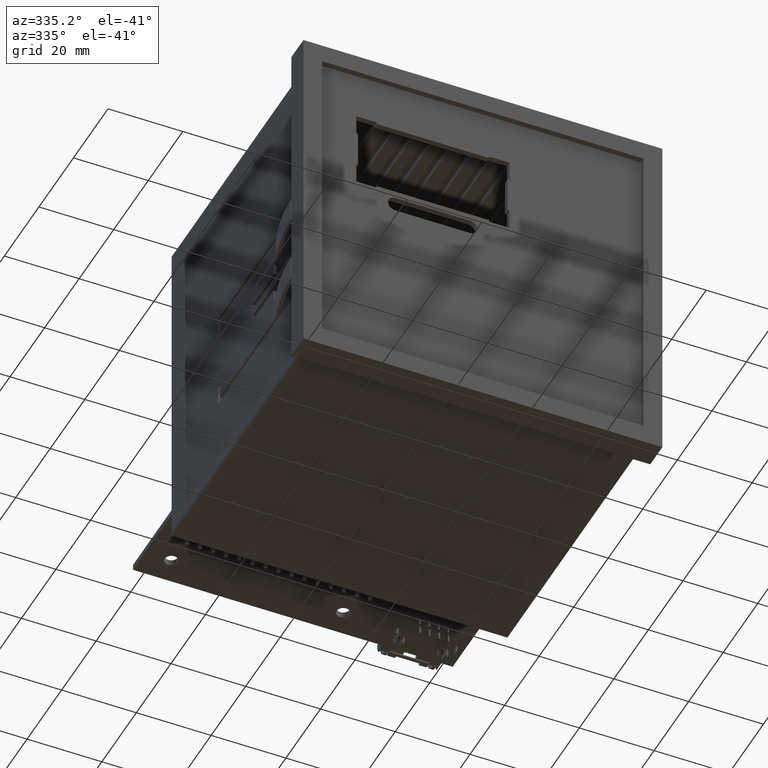
[diagram: clean part render]
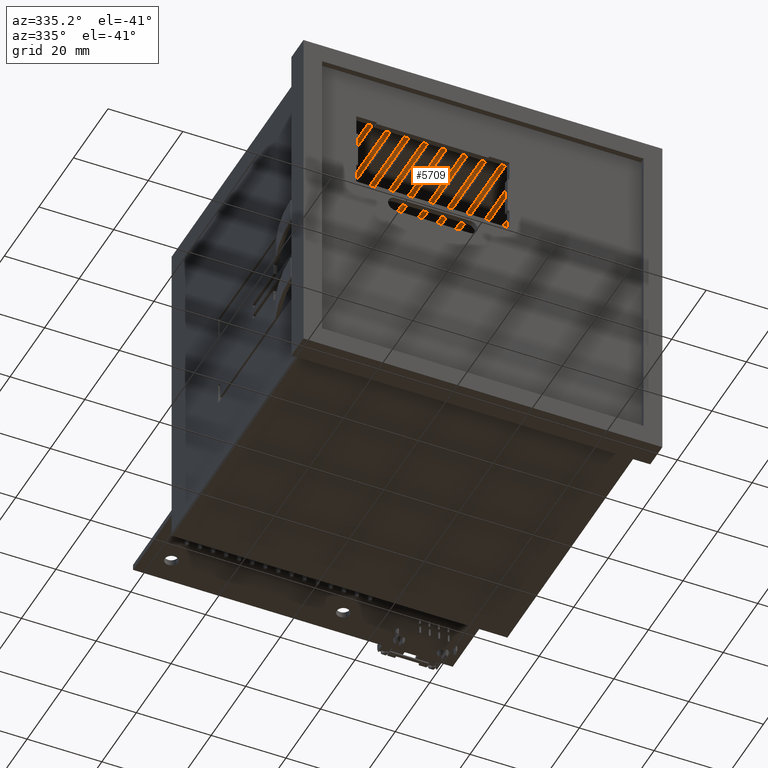
[diagram: same view with one face highlighted and labeled with its STEP entity id]
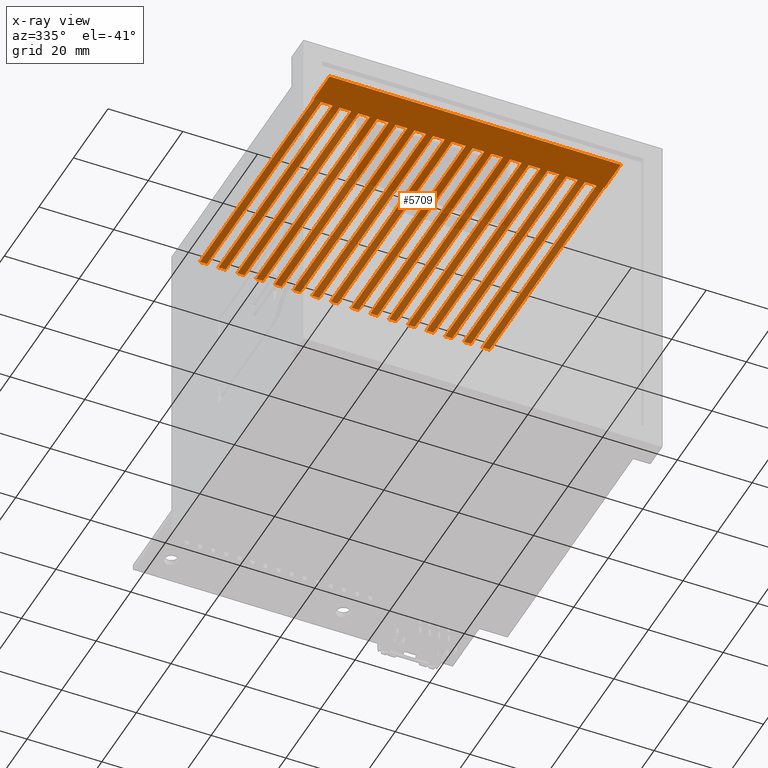
[diagram: x-ray of the same camera — body ghosted, the highlighted face saturated]
A machine part, auxiliary view. The second image highlights one B-rep face of the part: STEP entity #5709.
The next image is the same camera in x-ray: the body ghosted, the highlighted face saturated — about 59% of this face is hidden behind the body in this view.
In plain terms, the highlighted planar face has unit normal (0, 0, 1).
Its self-contained STEP definition (entity closure, byte-faithful):
#809=CARTESIAN_POINT('',(-13.957093014422588,-42.939066365486582,68.500000000000000));
#810=VERTEX_POINT('',#809);
#817=CARTESIAN_POINT('',(-13.957093014422597,-42.747252102161156,68.499999999999986));
#818=VERTEX_POINT('',#817);
#819=CARTESIAN_POINT('',(-13.957093014422588,-42.939066365486582,68.500000000000000));
#820=DIRECTION('',(0.0,1.0,0.0));
#821=VECTOR('',#820,0.191814263325426);
#822=LINE('',#819,#821);
#823=EDGE_CURVE('',#810,#818,#822,.T.);
#920=CARTESIAN_POINT('',(-13.957093014422586,-47.939066365486582,68.500000000000000));
#921=VERTEX_POINT('',#920);
#930=CARTESIAN_POINT('',(-13.957093014422588,-44.839066365486573,68.500000000000000));
#931=VERTEX_POINT('',#930);
#932=CARTESIAN_POINT('',(-13.957093014422586,-47.939066365486582,68.500000000000000));
#933=DIRECTION('',(0.0,1.0,0.0));
#934=VECTOR('',#933,3.100000000000009);
#935=LINE('',#932,#934);
#936=EDGE_CURVE('',#921,#931,#935,.T.);
#960=CARTESIAN_POINT('',(-13.957093014422586,-52.939066365486582,68.500000000000000));
#961=VERTEX_POINT('',#960);
#970=CARTESIAN_POINT('',(-13.957093014422586,-49.839066365486573,68.500000000000000));
#971=VERTEX_POINT('',#970);
#972=CARTESIAN_POINT('',(-13.957093014422586,-52.939066365486582,68.500000000000000));
#973=DIRECTION('',(0.0,1.0,0.0));
#974=VECTOR('',#973,3.100000000000009);
#975=LINE('',#972,#974);
#976=EDGE_CURVE('',#961,#971,#975,.T.);
#1040=CARTESIAN_POINT('',(-13.957093014422586,-57.939066365486582,68.500000000000000));
#1041=VERTEX_POINT('',#1040);
#1050=CARTESIAN_POINT('',(-13.957093014422586,-54.839066365486573,68.500000000000000));
#1051=VERTEX_POINT('',#1050);
#1052=CARTESIAN_POINT('',(-13.957093014422586,-57.939066365486582,68.500000000000000));
#1053=DIRECTION('',(0.0,1.0,0.0));
#1054=VECTOR('',#1053,3.100000000000009);
#1055=LINE('',#1052,#1054);
#1056=EDGE_CURVE('',#1041,#1051,#1055,.T.);
#1120=CARTESIAN_POINT('',(-13.957093014422584,-62.939066365486582,68.500000000000000));
#1121=VERTEX_POINT('',#1120);
#1130=CARTESIAN_POINT('',(-13.957093014422586,-59.839066365486573,68.500000000000000));
#1131=VERTEX_POINT('',#1130);
#1132=CARTESIAN_POINT('',(-13.957093014422584,-62.939066365486582,68.500000000000000));
#1133=DIRECTION('',(0.0,1.0,0.0));
#1134=VECTOR('',#1133,3.100000000000009);
#1135=LINE('',#1132,#1134);
#1136=EDGE_CURVE('',#1121,#1131,#1135,.T.);
#1200=CARTESIAN_POINT('',(-13.957093014422584,-67.939066365486582,68.500000000000000));
#1201=VERTEX_POINT('',#1200);
#1210=CARTESIAN_POINT('',(-13.957093014422584,-64.839066365486573,68.500000000000000));
#1211=VERTEX_POINT('',#1210);
#1212=CARTESIAN_POINT('',(-13.957093014422584,-67.939066365486582,68.500000000000000));
#1213=DIRECTION('',(0.0,1.0,0.0));
#1214=VECTOR('',#1213,3.100000000000009);
#1215=LINE('',#1212,#1214);
#1216=EDGE_CURVE('',#1201,#1211,#1215,.T.);
#1280=CARTESIAN_POINT('',(-13.957093014422584,-72.939066365486582,68.500000000000000));
#1281=VERTEX_POINT('',#1280);
#1290=CARTESIAN_POINT('',(-13.957093014422584,-69.839066365486573,68.500000000000000));
#1291=VERTEX_POINT('',#1290);
#1292=CARTESIAN_POINT('',(-13.957093014422584,-72.939066365486582,68.500000000000000));
#1293=DIRECTION('',(0.0,1.0,0.0));
#1294=VECTOR('',#1293,3.100000000000009);
#1295=LINE('',#1292,#1294);
#1296=EDGE_CURVE('',#1281,#1291,#1295,.T.);
#1360=CARTESIAN_POINT('',(-13.957093014422583,-77.939066365486582,68.500000000000000));
#1361=VERTEX_POINT('',#1360);
#1370=CARTESIAN_POINT('',(-13.957093014422584,-74.839066365486573,68.500000000000000));
#1371=VERTEX_POINT('',#1370);
#1372=CARTESIAN_POINT('',(-13.957093014422583,-77.939066365486582,68.500000000000000));
#1373=DIRECTION('',(0.0,1.0,0.0));
#1374=VECTOR('',#1373,3.100000000000009);
#1375=LINE('',#1372,#1374);
#1376=EDGE_CURVE('',#1361,#1371,#1375,.T.);
#1440=CARTESIAN_POINT('',(-13.957093014422583,-83.539066365486590,68.500000000000000));
#1441=VERTEX_POINT('',#1440);
#1450=CARTESIAN_POINT('',(-13.957093014422583,-79.839066365486573,68.500000000000000));
#1451=VERTEX_POINT('',#1450);
#1452=CARTESIAN_POINT('',(-13.957093014422583,-83.539066365486590,68.500000000000000));
#1453=DIRECTION('',(0.0,1.0,0.0));
#1454=VECTOR('',#1453,3.700000000000017);
#1455=LINE('',#1452,#1454);
#1456=EDGE_CURVE('',#1441,#1451,#1455,.T.);
#1520=CARTESIAN_POINT('',(-13.957093014422583,-88.539066365486590,68.500000000000000));
#1521=VERTEX_POINT('',#1520);
#1530=CARTESIAN_POINT('',(-13.957093014422583,-85.439066365486596,68.500000000000000));
#1531=VERTEX_POINT('',#1530);
#1532=CARTESIAN_POINT('',(-13.957093014422583,-88.539066365486590,68.500000000000000));
#1533=DIRECTION('',(0.0,1.0,0.0));
#1534=VECTOR('',#1533,3.099999999999994);
#1535=LINE('',#1532,#1534);
#1536=EDGE_CURVE('',#1521,#1531,#1535,.T.);
#1600=CARTESIAN_POINT('',(-13.957093014422581,-93.539066365486590,68.500000000000000));
#1601=VERTEX_POINT('',#1600);
#1610=CARTESIAN_POINT('',(-13.957093014422581,-90.439066365486596,68.500000000000000));
#1611=VERTEX_POINT('',#1610);
#1612=CARTESIAN_POINT('',(-13.957093014422581,-93.539066365486590,68.500000000000000));
#1613=DIRECTION('',(0.0,1.0,0.0));
#1614=VECTOR('',#1613,3.099999999999994);
#1615=LINE('',#1612,#1614);
#1616=EDGE_CURVE('',#1601,#1611,#1615,.T.);
#1680=CARTESIAN_POINT('',(-13.957093014422581,-98.539066365486590,68.500000000000000));
#1681=VERTEX_POINT('',#1680);
#1690=CARTESIAN_POINT('',(-13.957093014422581,-95.439066365486596,68.500000000000000));
#1691=VERTEX_POINT('',#1690);
#1692=CARTESIAN_POINT('',(-13.957093014422581,-98.539066365486590,68.500000000000000));
#1693=DIRECTION('',(0.0,1.0,0.0));
#1694=VECTOR('',#1693,3.099999999999994);
#1695=LINE('',#1692,#1694);
#1696=EDGE_CURVE('',#1681,#1691,#1695,.T.);
#1760=CARTESIAN_POINT('',(-13.957093014422581,-103.539066365486590,68.500000000000000));
#1761=VERTEX_POINT('',#1760);
#1770=CARTESIAN_POINT('',(-13.957093014422581,-100.439066365486600,68.500000000000000));
#1771=VERTEX_POINT('',#1770);
#1772=CARTESIAN_POINT('',(-13.957093014422581,-103.539066365486590,68.500000000000000));
#1773=DIRECTION('',(0.0,1.0,0.0));
#1774=VECTOR('',#1773,3.099999999999994);
#1775=LINE('',#1772,#1774);
#1776=EDGE_CURVE('',#1761,#1771,#1775,.T.);
#1840=CARTESIAN_POINT('',(-13.957093014422579,-108.539066365486590,68.500000000000000));
#1841=VERTEX_POINT('',#1840);
#1850=CARTESIAN_POINT('',(-13.957093014422579,-105.439066365486600,68.500000000000000));
#1851=VERTEX_POINT('',#1850);
#1852=CARTESIAN_POINT('',(-13.957093014422579,-108.539066365486590,68.500000000000000));
#1853=DIRECTION('',(0.0,1.0,0.0));
#1854=VECTOR('',#1853,3.099999999999994);
#1855=LINE('',#1852,#1854);
#1856=EDGE_CURVE('',#1841,#1851,#1855,.T.);
#1953=CARTESIAN_POINT('',(-13.957093014422579,-118.539066365486590,68.500000000000000));
#1954=VERTEX_POINT('',#1953);
#1963=CARTESIAN_POINT('',(-13.957093014422579,-115.439066365486600,68.500000000000000));
#1964=VERTEX_POINT('',#1963);
#1965=CARTESIAN_POINT('',(-13.957093014422579,-118.539066365486590,68.500000000000000));
#1966=DIRECTION('',(0.0,1.0,0.0));
#1967=VECTOR('',#1966,3.099999999999994);
#1968=LINE('',#1965,#1967);
#1969=EDGE_CURVE('',#1954,#1964,#1968,.T.);
#1993=CARTESIAN_POINT('',(-13.957093014422579,-113.539066365486590,68.500000000000000));
#1994=VERTEX_POINT('',#1993);
#2003=CARTESIAN_POINT('',(-13.957093014422579,-110.439066365486600,68.500000000000000));
#2004=VERTEX_POINT('',#2003);
#2005=CARTESIAN_POINT('',(-13.957093014422579,-113.539066365486590,68.500000000000000));
#2006=DIRECTION('',(0.0,1.0,0.0));
#2007=VECTOR('',#2006,3.099999999999994);
#2008=LINE('',#2005,#2007);
#2009=EDGE_CURVE('',#1994,#2004,#2008,.T.);
#2097=CARTESIAN_POINT('',(-13.957093014422577,-120.439066365486600,68.500000000000000));
#2098=VERTEX_POINT('',#2097);
#2105=CARTESIAN_POINT('',(-13.957093014422576,-120.630880628811950,68.499999999999986));
#2106=VERTEX_POINT('',#2105);
#2114=CARTESIAN_POINT('',(-13.957093014422576,-120.630880628811950,68.499999999999986));
#2115=DIRECTION('',(0.0,1.0,0.0));
#2116=VECTOR('',#2115,0.191814263325355);
#2117=LINE('',#2114,#2116);
#2118=EDGE_CURVE('',#2106,#2098,#2117,.T.);
#5256=CARTESIAN_POINT('',(-13.957093014422576,-120.630880628811950,78.0));
#5257=VERTEX_POINT('',#5256);
#5265=CARTESIAN_POINT('',(-13.957093014422576,-120.630880628811950,78.0));
#5266=DIRECTION('',(0.0,0.0,-1.0));
#5267=VECTOR('',#5266,9.500000000000014);
#5268=LINE('',#5265,#5267);
#5269=EDGE_CURVE('',#5257,#2106,#5268,.T.);
#5307=CARTESIAN_POINT('',(-13.957093014422576,-120.439066365486600,2.500000000000000));
#5308=VERTEX_POINT('',#5307);
#5309=CARTESIAN_POINT('',(-13.957093014422576,-120.439066365486600,2.500000000000000));
#5310=DIRECTION('',(0.0,0.0,1.0));
#5311=VECTOR('',#5310,66.0);
#5312=LINE('',#5309,#5311);
#5313=EDGE_CURVE('',#5308,#2098,#5312,.T.);
#5325=CARTESIAN_POINT('',(-13.957093014422576,-118.539066365486590,-0.500000000000000));
#5326=DIRECTION('',(1.0,0.0,0.0));
#5327=DIRECTION('',(0.0,0.0,-1.0));
#5328=AXIS2_PLACEMENT_3D('',#5325,#5326,#5327);
#5329=PLANE('',#5328);
#5330=CARTESIAN_POINT('',(-13.957093014422576,-118.539066365486590,2.500000000000000));
#5331=VERTEX_POINT('',#5330);
#5332=CARTESIAN_POINT('',(-13.957093014422576,-118.539066365486590,2.500000000000000));
#5333=DIRECTION('',(0.0,0.0,1.0));
#5334=VECTOR('',#5333,66.0);
#5335=LINE('',#5332,#5334);
#5336=EDGE_CURVE('',#5331,#1954,#5335,.T.);
#5337=ORIENTED_EDGE('',*,*,#5336,.F.);
#5338=CARTESIAN_POINT('',(-13.957093014422576,-118.539066365486590,2.500000000000000));
#5339=DIRECTION('',(0.0,-1.0,0.0));
#5340=VECTOR('',#5339,1.900000000000006);
#5341=LINE('',#5338,#5340);
#5342=EDGE_CURVE('',#5331,#5308,#5341,.T.);
#5343=ORIENTED_EDGE('',*,*,#5342,.T.);
#5344=ORIENTED_EDGE('',*,*,#5313,.T.);
#5345=ORIENTED_EDGE('',*,*,#2118,.F.);
#5346=ORIENTED_EDGE('',*,*,#5269,.F.);
#5347=CARTESIAN_POINT('',(-13.957093014422597,-42.747252102161156,78.0));
#5348=VERTEX_POINT('',#5347);
#5349=CARTESIAN_POINT('',(-13.957093014422597,-42.747252102161156,78.0));
#5350=DIRECTION('',(0.0,-1.0,0.0));
#5351=VECTOR('',#5350,77.883628526650796);
#5352=LINE('',#5349,#5351);
#5353=EDGE_CURVE('',#5348,#5257,#5352,.T.);
#5354=ORIENTED_EDGE('',*,*,#5353,.F.);
#5355=CARTESIAN_POINT('',(-13.957093014422597,-42.747252102161156,78.0));
#5356=DIRECTION('',(0.0,0.0,-1.0));
#5357=VECTOR('',#5356,9.500000000000014);
#5358=LINE('',#5355,#5357);
#5359=EDGE_CURVE('',#5348,#818,#5358,.T.);
#5360=ORIENTED_EDGE('',*,*,#5359,.T.);
#5361=ORIENTED_EDGE('',*,*,#823,.F.);
#5362=CARTESIAN_POINT('',(-13.957093014422604,-42.939066365486582,2.500000000000000));
#5363=VERTEX_POINT('',#5362);
#5364=CARTESIAN_POINT('',(-13.957093014422604,-42.939066365486582,2.500000000000000));
#5365=DIRECTION('',(0.0,0.0,1.0));
#5366=VECTOR('',#5365,66.0);
#5367=LINE('',#5364,#5366);
#5368=EDGE_CURVE('',#5363,#810,#5367,.T.);
#5369=ORIENTED_EDGE('',*,*,#5368,.F.);
#5370=CARTESIAN_POINT('',(-13.957093014422604,-44.839066365486573,2.500000000000000));
#5371=VERTEX_POINT('',#5370);
#5372=CARTESIAN_POINT('',(-13.957093014422604,-44.839066365486573,2.500000000000000));
#5373=DIRECTION('',(0.0,1.0,0.0));
#5374=VECTOR('',#5373,1.899999999999992);
#5375=LINE('',#5372,#5374);
#5376=EDGE_CURVE('',#5371,#5363,#5375,.T.);
#5377=ORIENTED_EDGE('',*,*,#5376,.F.);
#5378=CARTESIAN_POINT('',(-13.957093014422604,-44.839066365486573,2.500000000000000));
#5379=DIRECTION('',(0.0,0.0,1.0));
#5380=VECTOR('',#5379,66.0);
#5381=LINE('',#5378,#5380);
#5382=EDGE_CURVE('',#5371,#931,#5381,.T.);
#5383=ORIENTED_EDGE('',*,*,#5382,.T.);
#5384=ORIENTED_EDGE('',*,*,#936,.F.);
#5385=CARTESIAN_POINT('',(-13.957093014422604,-47.939066365486582,2.500000000000000));
#5386=VERTEX_POINT('',#5385);
#5387=CARTESIAN_POINT('',(-13.957093014422604,-47.939066365486582,2.500000000000000));
#5388=DIRECTION('',(0.0,0.0,1.0));
#5389=VECTOR('',#5388,66.0);
#5390=LINE('',#5387,#5389);
#5391=EDGE_CURVE('',#5386,#921,#5390,.T.);
#5392=ORIENTED_EDGE('',*,*,#5391,.F.);
#5393=CARTESIAN_POINT('',(-13.957093014422604,-49.839066365486573,2.500000000000000));
#5394=VERTEX_POINT('',#5393);
#5395=CARTESIAN_POINT('',(-13.957093014422604,-49.839066365486573,2.500000000000000));
#5396=DIRECTION('',(0.0,1.0,0.0));
#5397=VECTOR('',#5396,1.899999999999992);
#5398=LINE('',#5395,#5397);
#5399=EDGE_CURVE('',#5394,#5386,#5398,.T.);
#5400=ORIENTED_EDGE('',*,*,#5399,.F.);
#5401=CARTESIAN_POINT('',(-13.957093014422604,-49.839066365486573,2.500000000000000));
#5402=DIRECTION('',(0.0,0.0,1.0));
#5403=VECTOR('',#5402,66.0);
#5404=LINE('',#5401,#5403);
#5405=EDGE_CURVE('',#5394,#971,#5404,.T.);
#5406=ORIENTED_EDGE('',*,*,#5405,.T.);
#5407=ORIENTED_EDGE('',*,*,#976,.F.);
#5408=CARTESIAN_POINT('',(-13.957093014422602,-52.939066365486582,2.500000000000000));
#5409=VERTEX_POINT('',#5408);
#5410=CARTESIAN_POINT('',(-13.957093014422602,-52.939066365486582,2.500000000000000));
#5411=DIRECTION('',(0.0,0.0,1.0));
#5412=VECTOR('',#5411,66.0);
#5413=LINE('',#5410,#5412);
#5414=EDGE_CURVE('',#5409,#961,#5413,.T.);
#5415=ORIENTED_EDGE('',*,*,#5414,.F.);
#5416=CARTESIAN_POINT('',(-13.957093014422602,-54.839066365486573,2.500000000000000));
#5417=VERTEX_POINT('',#5416);
#5418=CARTESIAN_POINT('',(-13.957093014422602,-54.839066365486573,2.500000000000000));
#5419=DIRECTION('',(0.0,1.0,0.0));
#5420=VECTOR('',#5419,1.899999999999992);
#5421=LINE('',#5418,#5420);
#5422=EDGE_CURVE('',#5417,#5409,#5421,.T.);
#5423=ORIENTED_EDGE('',*,*,#5422,.F.);
#5424=CARTESIAN_POINT('',(-13.957093014422602,-54.839066365486573,2.500000000000000));
#5425=DIRECTION('',(0.0,0.0,1.0));
#5426=VECTOR('',#5425,66.0);
#5427=LINE('',#5424,#5426);
#5428=EDGE_CURVE('',#5417,#1051,#5427,.T.);
#5429=ORIENTED_EDGE('',*,*,#5428,.T.);
#5430=ORIENTED_EDGE('',*,*,#1056,.F.);
#5431=CARTESIAN_POINT('',(-13.957093014422600,-57.939066365486582,2.500000000000000));
#5432=VERTEX_POINT('',#5431);
#5433=CARTESIAN_POINT('',(-13.957093014422600,-57.939066365486582,2.500000000000000));
#5434=DIRECTION('',(0.0,0.0,1.0));
#5435=VECTOR('',#5434,66.0);
#5436=LINE('',#5433,#5435);
#5437=EDGE_CURVE('',#5432,#1041,#5436,.T.);
#5438=ORIENTED_EDGE('',*,*,#5437,.F.);
#5439=CARTESIAN_POINT('',(-13.957093014422600,-59.839066365486573,2.500000000000000));
#5440=VERTEX_POINT('',#5439);
#5441=CARTESIAN_POINT('',(-13.957093014422600,-59.839066365486573,2.500000000000000));
#5442=DIRECTION('',(0.0,1.0,0.0));
#5443=VECTOR('',#5442,1.899999999999992);
#5444=LINE('',#5441,#5443);
#5445=EDGE_CURVE('',#5440,#5432,#5444,.T.);
#5446=ORIENTED_EDGE('',*,*,#5445,.F.);
#5447=CARTESIAN_POINT('',(-13.957093014422600,-59.839066365486573,2.500000000000000));
#5448=DIRECTION('',(0.0,0.0,1.0));
#5449=VECTOR('',#5448,66.0);
#5450=LINE('',#5447,#5449);
#5451=EDGE_CURVE('',#5440,#1131,#5450,.T.);
#5452=ORIENTED_EDGE('',*,*,#5451,.T.);
#5453=ORIENTED_EDGE('',*,*,#1136,.F.);
#5454=CARTESIAN_POINT('',(-13.957093014422600,-62.939066365486582,2.500000000000000));
#5455=VERTEX_POINT('',#5454);
#5456=CARTESIAN_POINT('',(-13.957093014422600,-62.939066365486582,2.500000000000000));
#5457=DIRECTION('',(0.0,0.0,1.0));
#5458=VECTOR('',#5457,66.0);
#5459=LINE('',#5456,#5458);
#5460=EDGE_CURVE('',#5455,#1121,#5459,.T.);
#5461=ORIENTED_EDGE('',*,*,#5460,.F.);
#5462=CARTESIAN_POINT('',(-13.957093014422600,-64.839066365486573,2.500000000000000));
#5463=VERTEX_POINT('',#5462);
#5464=CARTESIAN_POINT('',(-13.957093014422600,-64.839066365486573,2.500000000000000));
#5465=DIRECTION('',(0.0,1.0,0.0));
#5466=VECTOR('',#5465,1.899999999999992);
#5467=LINE('',#5464,#5466);
#5468=EDGE_CURVE('',#5463,#5455,#5467,.T.);
#5469=ORIENTED_EDGE('',*,*,#5468,.F.);
#5470=CARTESIAN_POINT('',(-13.957093014422600,-64.839066365486573,2.500000000000000));
#5471=DIRECTION('',(0.0,0.0,1.0));
#5472=VECTOR('',#5471,66.0);
#5473=LINE('',#5470,#5472);
#5474=EDGE_CURVE('',#5463,#1211,#5473,.T.);
#5475=ORIENTED_EDGE('',*,*,#5474,.T.);
#5476=ORIENTED_EDGE('',*,*,#1216,.F.);
#5477=CARTESIAN_POINT('',(-13.957093014422599,-67.939066365486582,2.500000000000000));
#5478=VERTEX_POINT('',#5477);
#5479=CARTESIAN_POINT('',(-13.957093014422599,-67.939066365486582,2.500000000000000));
#5480=DIRECTION('',(0.0,0.0,1.0));
#5481=VECTOR('',#5480,66.0);
#5482=LINE('',#5479,#5481);
#5483=EDGE_CURVE('',#5478,#1201,#5482,.T.);
#5484=ORIENTED_EDGE('',*,*,#5483,.F.);
#5485=CARTESIAN_POINT('',(-13.957093014422599,-69.839066365486573,2.500000000000000));
#5486=VERTEX_POINT('',#5485);
#5487=CARTESIAN_POINT('',(-13.957093014422599,-69.839066365486573,2.500000000000000));
#5488=DIRECTION('',(0.0,1.0,0.0));
#5489=VECTOR('',#5488,1.899999999999992);
#5490=LINE('',#5487,#5489);
#5491=EDGE_CURVE('',#5486,#5478,#5490,.T.);
#5492=ORIENTED_EDGE('',*,*,#5491,.F.);
#5493=CARTESIAN_POINT('',(-13.957093014422599,-69.839066365486573,2.500000000000000));
#5494=DIRECTION('',(0.0,0.0,1.0));
#5495=VECTOR('',#5494,66.0);
#5496=LINE('',#5493,#5495);
#5497=EDGE_CURVE('',#5486,#1291,#5496,.T.);
#5498=ORIENTED_EDGE('',*,*,#5497,.T.);
#5499=ORIENTED_EDGE('',*,*,#1296,.F.);
#5500=CARTESIAN_POINT('',(-13.957093014422599,-72.939066365486582,2.500000000000000));
#5501=VERTEX_POINT('',#5500);
#5502=CARTESIAN_POINT('',(-13.957093014422599,-72.939066365486582,2.500000000000000));
#5503=DIRECTION('',(0.0,0.0,1.0));
#5504=VECTOR('',#5503,66.0);
#5505=LINE('',#5502,#5504);
#5506=EDGE_CURVE('',#5501,#1281,#5505,.T.);
#5507=ORIENTED_EDGE('',*,*,#5506,.F.);
#5508=CARTESIAN_POINT('',(-13.957093014422599,-74.839066365486573,2.500000000000000));
#5509=VERTEX_POINT('',#5508);
#5510=CARTESIAN_POINT('',(-13.957093014422599,-74.839066365486573,2.500000000000000));
#5511=DIRECTION('',(0.0,1.0,0.0));
#5512=VECTOR('',#5511,1.899999999999992);
#5513=LINE('',#5510,#5512);
#5514=EDGE_CURVE('',#5509,#5501,#5513,.T.);
#5515=ORIENTED_EDGE('',*,*,#5514,.F.);
#5516=CARTESIAN_POINT('',(-13.957093014422599,-74.839066365486573,2.500000000000000));
#5517=DIRECTION('',(0.0,0.0,1.0));
#5518=VECTOR('',#5517,66.0);
#5519=LINE('',#5516,#5518);
#5520=EDGE_CURVE('',#5509,#1371,#5519,.T.);
#5521=ORIENTED_EDGE('',*,*,#5520,.T.);
#5522=ORIENTED_EDGE('',*,*,#1376,.F.);
#5523=CARTESIAN_POINT('',(-13.957093014422597,-77.939066365486582,2.500000000000000));
#5524=VERTEX_POINT('',#5523);
#5525=CARTESIAN_POINT('',(-13.957093014422597,-77.939066365486582,2.500000000000000));
#5526=DIRECTION('',(0.0,0.0,1.0));
#5527=VECTOR('',#5526,66.0);
#5528=LINE('',#5525,#5527);
#5529=EDGE_CURVE('',#5524,#1361,#5528,.T.);
#5530=ORIENTED_EDGE('',*,*,#5529,.F.);
#5531=CARTESIAN_POINT('',(-13.957093014422597,-79.839066365486573,2.500000000000000));
#5532=VERTEX_POINT('',#5531);
#5533=CARTESIAN_POINT('',(-13.957093014422597,-79.839066365486573,2.500000000000000));
#5534=DIRECTION('',(0.0,1.0,0.0));
#5535=VECTOR('',#5534,1.899999999999992);
#5536=LINE('',#5533,#5535);
#5537=EDGE_CURVE('',#5532,#5524,#5536,.T.);
#5538=ORIENTED_EDGE('',*,*,#5537,.F.);
#5539=CARTESIAN_POINT('',(-13.957093014422597,-79.839066365486573,2.500000000000000));
#5540=DIRECTION('',(0.0,0.0,1.0));
#5541=VECTOR('',#5540,66.0);
#5542=LINE('',#5539,#5541);
#5543=EDGE_CURVE('',#5532,#1451,#5542,.T.);
#5544=ORIENTED_EDGE('',*,*,#5543,.T.);
#5545=ORIENTED_EDGE('',*,*,#1456,.F.);
#5546=CARTESIAN_POINT('',(-13.957093014422583,-83.539066365486590,2.500000000000000));
#5547=VERTEX_POINT('',#5546);
#5548=CARTESIAN_POINT('',(-13.957093014422583,-83.539066365486590,2.500000000000000));
#5549=DIRECTION('',(0.0,0.0,1.0));
#5550=VECTOR('',#5549,66.0);
#5551=LINE('',#5548,#5550);
#5552=EDGE_CURVE('',#5547,#1441,#5551,.T.);
#5553=ORIENTED_EDGE('',*,*,#5552,.F.);
#5554=CARTESIAN_POINT('',(-13.957093014422583,-85.439066365486596,2.500000000000000));
#5555=VERTEX_POINT('',#5554);
#5556=CARTESIAN_POINT('',(-13.957093014422583,-83.539066365486590,2.500000000000000));
#5557=DIRECTION('',(0.0,-1.0,0.0));
#5558=VECTOR('',#5557,1.900000000000006);
#5559=LINE('',#5556,#5558);
#5560=EDGE_CURVE('',#5547,#5555,#5559,.T.);
#5561=ORIENTED_EDGE('',*,*,#5560,.T.);
#5562=CARTESIAN_POINT('',(-13.957093014422583,-85.439066365486596,2.500000000000000));
#5563=DIRECTION('',(0.0,0.0,1.0));
#5564=VECTOR('',#5563,66.0);
#5565=LINE('',#5562,#5564);
#5566=EDGE_CURVE('',#5555,#1531,#5565,.T.);
#5567=ORIENTED_EDGE('',*,*,#5566,.T.);
#5568=ORIENTED_EDGE('',*,*,#1536,.F.);
#5569=CARTESIAN_POINT('',(-13.957093014422581,-88.539066365486590,2.500000000000000));
#5570=VERTEX_POINT('',#5569);
#5571=CARTESIAN_POINT('',(-13.957093014422581,-88.539066365486590,2.500000000000000));
#5572=DIRECTION('',(0.0,0.0,1.0));
#5573=VECTOR('',#5572,66.0);
#5574=LINE('',#5571,#5573);
#5575=EDGE_CURVE('',#5570,#1521,#5574,.T.);
#5576=ORIENTED_EDGE('',*,*,#5575,.F.);
#5577=CARTESIAN_POINT('',(-13.957093014422581,-90.439066365486596,2.500000000000000));
#5578=VERTEX_POINT('',#5577);
#5579=CARTESIAN_POINT('',(-13.957093014422581,-88.539066365486590,2.500000000000000));
#5580=DIRECTION('',(0.0,-1.0,0.0));
#5581=VECTOR('',#5580,1.900000000000006);
#5582=LINE('',#5579,#5581);
#5583=EDGE_CURVE('',#5570,#5578,#5582,.T.);
#5584=ORIENTED_EDGE('',*,*,#5583,.T.);
#5585=CARTESIAN_POINT('',(-13.957093014422581,-90.439066365486596,2.500000000000000));
#5586=DIRECTION('',(0.0,0.0,1.0));
#5587=VECTOR('',#5586,66.0);
#5588=LINE('',#5585,#5587);
#5589=EDGE_CURVE('',#5578,#1611,#5588,.T.);
#5590=ORIENTED_EDGE('',*,*,#5589,.T.);
#5591=ORIENTED_EDGE('',*,*,#1616,.F.);
#5592=CARTESIAN_POINT('',(-13.957093014422581,-93.539066365486590,2.500000000000000));
#5593=VERTEX_POINT('',#5592);
#5594=CARTESIAN_POINT('',(-13.957093014422581,-93.539066365486590,2.500000000000000));
#5595=DIRECTION('',(0.0,0.0,1.0));
#5596=VECTOR('',#5595,66.0);
#5597=LINE('',#5594,#5596);
#5598=EDGE_CURVE('',#5593,#1601,#5597,.T.);
#5599=ORIENTED_EDGE('',*,*,#5598,.F.);
#5600=CARTESIAN_POINT('',(-13.957093014422581,-95.439066365486596,2.500000000000000));
#5601=VERTEX_POINT('',#5600);
#5602=CARTESIAN_POINT('',(-13.957093014422581,-93.539066365486590,2.500000000000000));
#5603=DIRECTION('',(0.0,-1.0,0.0));
#5604=VECTOR('',#5603,1.900000000000006);
#5605=LINE('',#5602,#5604);
#5606=EDGE_CURVE('',#5593,#5601,#5605,.T.);
#5607=ORIENTED_EDGE('',*,*,#5606,.T.);
#5608=CARTESIAN_POINT('',(-13.957093014422581,-95.439066365486596,2.500000000000000));
#5609=DIRECTION('',(0.0,0.0,1.0));
#5610=VECTOR('',#5609,66.0);
#5611=LINE('',#5608,#5610);
#5612=EDGE_CURVE('',#5601,#1691,#5611,.T.);
#5613=ORIENTED_EDGE('',*,*,#5612,.T.);
#5614=ORIENTED_EDGE('',*,*,#1696,.F.);
#5615=CARTESIAN_POINT('',(-13.957093014422579,-98.539066365486590,2.500000000000000));
#5616=VERTEX_POINT('',#5615);
#5617=CARTESIAN_POINT('',(-13.957093014422579,-98.539066365486590,2.500000000000000));
#5618=DIRECTION('',(0.0,0.0,1.0));
#5619=VECTOR('',#5618,66.0);
#5620=LINE('',#5617,#5619);
#5621=EDGE_CURVE('',#5616,#1681,#5620,.T.);
#5622=ORIENTED_EDGE('',*,*,#5621,.F.);
#5623=CARTESIAN_POINT('',(-13.957093014422579,-100.439066365486600,2.500000000000000));
#5624=VERTEX_POINT('',#5623);
#5625=CARTESIAN_POINT('',(-13.957093014422579,-98.539066365486590,2.500000000000000));
#5626=DIRECTION('',(0.0,-1.0,0.0));
#5627=VECTOR('',#5626,1.900000000000006);
#5628=LINE('',#5625,#5627);
#5629=EDGE_CURVE('',#5616,#5624,#5628,.T.);
#5630=ORIENTED_EDGE('',*,*,#5629,.T.);
#5631=CARTESIAN_POINT('',(-13.957093014422579,-100.439066365486600,2.500000000000000));
#5632=DIRECTION('',(0.0,0.0,1.0));
#5633=VECTOR('',#5632,66.0);
#5634=LINE('',#5631,#5633);
#5635=EDGE_CURVE('',#5624,#1771,#5634,.T.);
#5636=ORIENTED_EDGE('',*,*,#5635,.T.);
#5637=ORIENTED_EDGE('',*,*,#1776,.F.);
#5638=CARTESIAN_POINT('',(-13.957093014422579,-103.539066365486590,2.500000000000000));
#5639=VERTEX_POINT('',#5638);
#5640=CARTESIAN_POINT('',(-13.957093014422579,-103.539066365486590,2.500000000000000));
#5641=DIRECTION('',(0.0,0.0,1.0));
#5642=VECTOR('',#5641,66.0);
#5643=LINE('',#5640,#5642);
#5644=EDGE_CURVE('',#5639,#1761,#5643,.T.);
#5645=ORIENTED_EDGE('',*,*,#5644,.F.);
#5646=CARTESIAN_POINT('',(-13.957093014422579,-105.439066365486600,2.500000000000000));
#5647=VERTEX_POINT('',#5646);
#5648=CARTESIAN_POINT('',(-13.957093014422579,-103.539066365486590,2.500000000000000));
#5649=DIRECTION('',(0.0,-1.0,0.0));
#5650=VECTOR('',#5649,1.900000000000006);
#5651=LINE('',#5648,#5650);
#5652=EDGE_CURVE('',#5639,#5647,#5651,.T.);
#5653=ORIENTED_EDGE('',*,*,#5652,.T.);
#5654=CARTESIAN_POINT('',(-13.957093014422579,-105.439066365486600,2.500000000000000));
#5655=DIRECTION('',(0.0,0.0,1.0));
#5656=VECTOR('',#5655,66.0);
#5657=LINE('',#5654,#5656);
#5658=EDGE_CURVE('',#5647,#1851,#5657,.T.);
#5659=ORIENTED_EDGE('',*,*,#5658,.T.);
#5660=ORIENTED_EDGE('',*,*,#1856,.F.);
#5661=CARTESIAN_POINT('',(-13.957093014422577,-108.539066365486590,2.500000000000000));
#5662=VERTEX_POINT('',#5661);
#5663=CARTESIAN_POINT('',(-13.957093014422577,-108.539066365486590,2.500000000000000));
#5664=DIRECTION('',(0.0,0.0,1.0));
#5665=VECTOR('',#5664,66.0);
#5666=LINE('',#5663,#5665);
#5667=EDGE_CURVE('',#5662,#1841,#5666,.T.);
#5668=ORIENTED_EDGE('',*,*,#5667,.F.);
#5669=CARTESIAN_POINT('',(-13.957093014422577,-110.439066365486600,2.500000000000000));
#5670=VERTEX_POINT('',#5669);
#5671=CARTESIAN_POINT('',(-13.957093014422577,-108.539066365486590,2.500000000000000));
#5672=DIRECTION('',(0.0,-1.0,0.0));
#5673=VECTOR('',#5672,1.900000000000006);
#5674=LINE('',#5671,#5673);
#5675=EDGE_CURVE('',#5662,#5670,#5674,.T.);
#5676=ORIENTED_EDGE('',*,*,#5675,.T.);
#5677=CARTESIAN_POINT('',(-13.957093014422577,-110.439066365486600,2.500000000000000));
#5678=DIRECTION('',(0.0,0.0,1.0));
#5679=VECTOR('',#5678,66.0);
#5680=LINE('',#5677,#5679);
#5681=EDGE_CURVE('',#5670,#2004,#5680,.T.);
#5682=ORIENTED_EDGE('',*,*,#5681,.T.);
#5683=ORIENTED_EDGE('',*,*,#2009,.F.);
#5684=CARTESIAN_POINT('',(-13.957093014422576,-113.539066365486590,2.500000000000000));
#5685=VERTEX_POINT('',#5684);
#5686=CARTESIAN_POINT('',(-13.957093014422576,-113.539066365486590,2.500000000000000));
#5687=DIRECTION('',(0.0,0.0,1.0));
#5688=VECTOR('',#5687,66.0);
#5689=LINE('',#5686,#5688);
#5690=EDGE_CURVE('',#5685,#1994,#5689,.T.);
#5691=ORIENTED_EDGE('',*,*,#5690,.F.);
#5692=CARTESIAN_POINT('',(-13.957093014422576,-115.439066365486600,2.500000000000000));
#5693=VERTEX_POINT('',#5692);
#5694=CARTESIAN_POINT('',(-13.957093014422576,-113.539066365486590,2.500000000000000));
#5695=DIRECTION('',(0.0,-1.0,0.0));
#5696=VECTOR('',#5695,1.900000000000006);
#5697=LINE('',#5694,#5696);
#5698=EDGE_CURVE('',#5685,#5693,#5697,.T.);
#5699=ORIENTED_EDGE('',*,*,#5698,.T.);
#5700=CARTESIAN_POINT('',(-13.957093014422576,-115.439066365486600,2.500000000000000));
#5701=DIRECTION('',(0.0,0.0,1.0));
#5702=VECTOR('',#5701,66.0);
#5703=LINE('',#5700,#5702);
#5704=EDGE_CURVE('',#5693,#1964,#5703,.T.);
#5705=ORIENTED_EDGE('',*,*,#5704,.T.);
#5706=ORIENTED_EDGE('',*,*,#1969,.F.);
#5707=EDGE_LOOP('',(#5337,#5343,#5344,#5345,#5346,#5354,#5360,#5361,#5369,#5377,#5383,#5384,#5392,#5400,#5406,#5407,#5415,#5423,#5429,#5430,#5438,#5446,#5452,#5453,#5461,#5469,#5475,#5476,#5484,#5492,#5498,#5499,#5507,#5515,#5521,#5522,#5530,#5538,#5544,#5545,#5553,#5561,#5567,#5568,#5576,#5584,#5590,#5591,#5599,#5607,#5613,#5614,#5622,#5630,#5636,#5637,#5645,#5653,#5659,#5660,#5668,#5676,#5682,#5683,#5691,#5699,#5705,#5706));
#5708=FACE_OUTER_BOUND('',#5707,.T.);
#5709=ADVANCED_FACE('',(#5708),#5329,.F.);